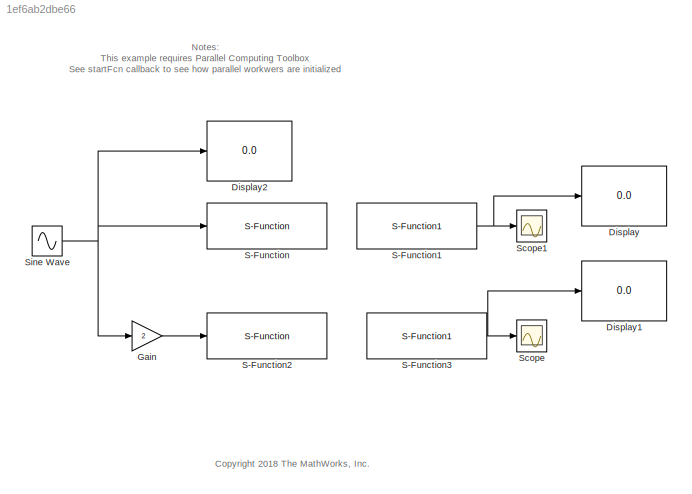
MODEL slx_1ef6ab2dbe66
KIND model
CONFIG AbsTol = auto
CONFIG EnableMultiTasking = off
CONFIG FixedStep = auto
CONFIG MaxStep = auto
CONFIG MinStep = auto
CONFIG RelTol = 1e-3
CONFIG SampleTimeConstraint = Unconstrained
CONFIG Solver = VariableStepAuto
CONFIG SolverName = VariableStepAuto
CONFIG StartFcn = StartUDPModelSim({'ParallelServer1Example','ParallelServer2Example'})
CONFIG StartTime = 0.0
CONFIG StopFcn = delete(gcp('nocreate'))
CONFIG StopTime = 30
BLOCK [Display] Display
  Decimation = 1
  Ports = [1]
BLOCK [Display] Display1
  Decimation = 1
  Ports = [1]
BLOCK [Display] Display2
  Decimation = 1
  Ports = [1]
BLOCK [Gain] Gain
  Gain = 2
  OutDataTypeStr = Inherit: Inherit via internal rule
  ParamDataTypeStr = Inherit: Inherit via internal rule
  SaturateOnIntegerOverflow = off
BLOCK [Reference] S-Function  REF=transmit_lib/S-Function
  AttributesFormatString = %<hostname>\n%<portnumber>\nPriority: %<Priority>
  Ports = [1]
  Priority = 1
  SourceBlock = transmit_lib/S-Function
  SourceProductName = The database <userpath>\AppData\Roaming\MathWorks\MATLAB\R2018a\slblocks_master.db is locked, or a table in the database is locked. (database is locked)
BLOCK [Reference] S-Function1  REF=transmit_lib/S-Function1
  AttributesFormatString = %<hostname>\n%<portnumber>\nPriority: %<Priority>
  Ports = [0, 1]
  Priority = 3
  SourceBlock = transmit_lib/S-Function1
  SourceProductName = The database <userpath>\AppData\Roaming\MathWorks\MATLAB\R2018a\slblocks_master.db is locked, or a table in the database is locked. (database is locked)
BLOCK [Reference] S-Function2  REF=transmit_lib/S-Function
  AttributesFormatString = %<hostname>\n%<portnumber>\nPriority: %<Priority>
  Ports = [1]
  Priority = 2
  SourceBlock = transmit_lib/S-Function
  SourceProductName = The database <userpath>\AppData\Roaming\MathWorks\MATLAB\R2018a\slblocks_master.db is locked, or a table in the database is locked. (database is locked)
BLOCK [Reference] S-Function3  REF=transmit_lib/S-Function1
  AttributesFormatString = %<hostname>\n%<portnumber>\nPriority: %<Priority>
  Ports = [0, 1]
  Priority = 4
  SourceBlock = transmit_lib/S-Function1
  SourceProductName = The database <userpath>\AppData\Roaming\MathWorks\MATLAB\R2018a\slblocks_master.db is locked, or a table in the database is locked. (database is locked)
BLOCK [Scope] Scope
  Floating = off
  NumInputPorts = 1
  Ports = [1]
  ScopeSpecificationString = Simulink.scopes.TimeScopeBlockCfg('CurrentConfiguration', extmgr.ConfigurationSet(extmgr.Configuration('Core','General UI',true),extmgr.Configuration('Core','Source UI',true),extmgr.Configuration('Sources','WiredSimulink',true),extmgr.Configuration('Visuals','Time Domain',true,'SerializedDisplays',{struct('MinYLimReal','-9.60714','MaxYLimReal','9.60714','YLabelReal','','MinYLimMag','0.00000','MaxY...<+1376ch>
BLOCK [Scope] Scope1
  Floating = off
  NumInputPorts = 1
  Ports = [1]
  ScopeSpecificationString = Simulink.scopes.TimeScopeBlockCfg('CurrentConfiguration', extmgr.ConfigurationSet(extmgr.Configuration('Core','General UI',true),extmgr.Configuration('Core','Source UI',true),extmgr.Configuration('Sources','WiredSimulink',true,'DataLoggingVariableName','ScopeData1'),extmgr.Configuration('Visuals','Time Domain',true,'SerializedDisplays',{struct('MinYLimReal','-2.94122','MaxYLimReal','3.03549','YLab...<+1434ch>
BLOCK [Sin] Sine Wave
  Amplitude = rand(3,1)
  Ports = [0, 1]
  SampleTime = 0.1
  Samples = 11
  SineType = Sample based
ANNOTATION (root): Notes: This example requires Parallel Computing Toolbox See startFcn callback to see how parallel workwers are initialized
ANNOTATION (root): <copyright redacted>
LINE Gain:1 -> S-Function2:1
NET S-Function1:1 -> Display:1, Scope1:1
NET S-Function3:1 -> Display1:1, Scope:1
NET Sine Wave:1 -> Display2:1, Gain:1, S-Function:1
note: NET lines group one-source signal fan-out (src -> all destinations, sorted); 1:1 wires keep LINE
